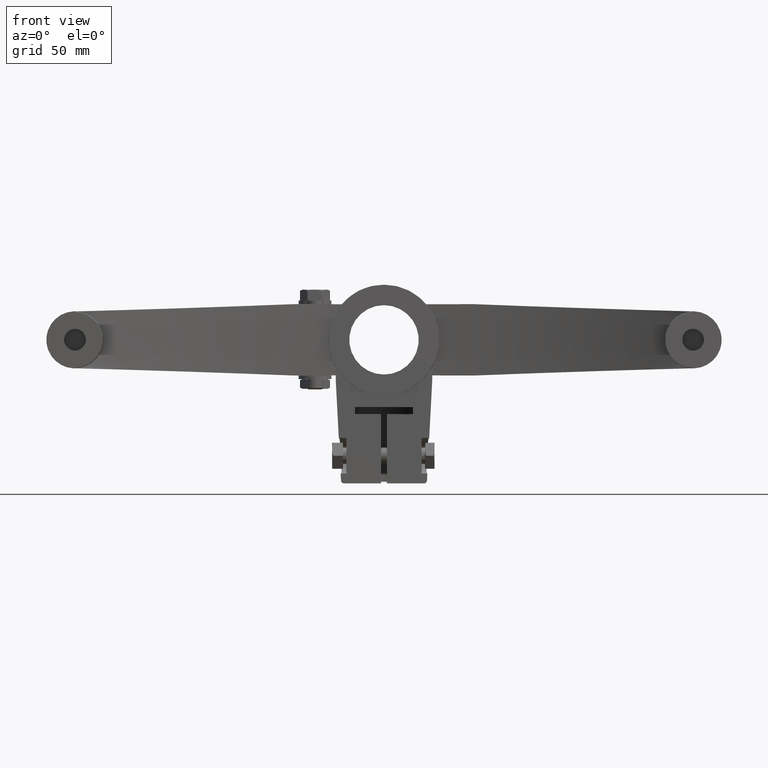
[diagram: clean part render]
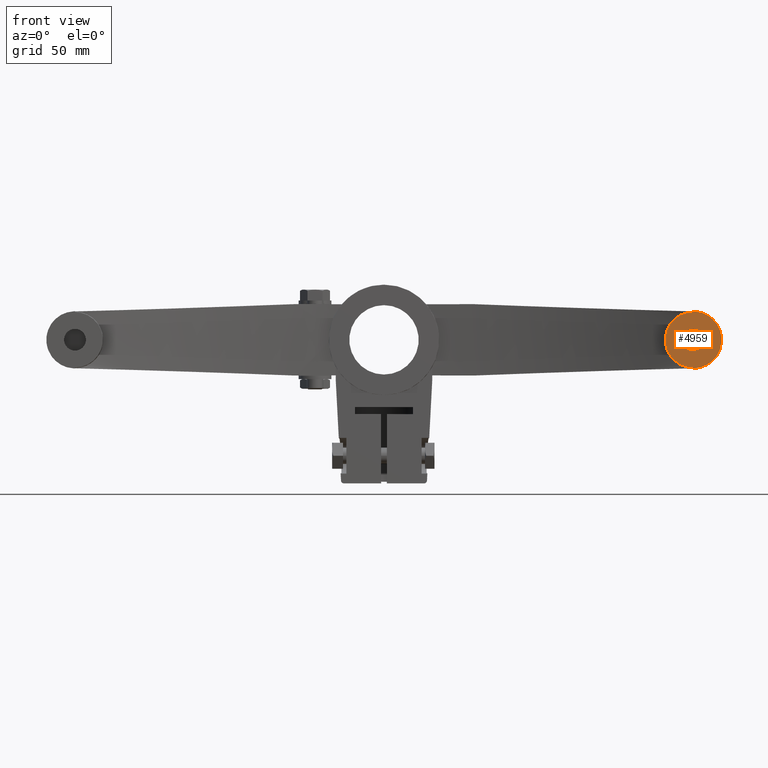
[diagram: same view with one face highlighted and labeled with its STEP entity id]
A machine part, front view. The second image highlights one B-rep face of the part: STEP entity #4959.
In plain terms, the highlighted planar face has unit normal (0, 1, 0).
Its self-contained STEP definition (entity closure, byte-faithful):
#800=DIRECTION('',(-1.543733348530E-12,1.294744098767E-12,-1.E0));
#801=VECTOR('',#800,5.707416978338E-1);
#802=CARTESIAN_POINT('',(2.2624E2,5.435E1,-2.035999999999E1));
#803=LINE('',#802,#801);
#840=DIRECTION('',(1.444137648625E-12,-1.294744098767E-12,-1.E0));
#841=VECTOR('',#840,5.707416978338E-1);
#842=CARTESIAN_POINT('',(2.2624E2,5.435E1,2.093074169782E1));
#843=LINE('',#842,#841);
#1007=CARTESIAN_POINT('',(2.2624E2,5.435E1,0.E0));
#1008=DIRECTION('',(0.E0,1.E0,0.E0));
#1009=DIRECTION('',(0.E0,0.E0,-1.E0));
#1010=AXIS2_PLACEMENT_3D('',#1007,#1008,#1009);
#1012=CARTESIAN_POINT('',(2.2624E2,5.435E1,1.030286966852E-13));
#1013=DIRECTION('',(0.E0,1.E0,0.E0));
#1014=DIRECTION('',(4.385572637694E-2,0.E0,9.990378747895E-1));
#1015=AXIS2_PLACEMENT_3D('',#1012,#1013,#1014);
#1017=CARTESIAN_POINT('',(2.2624E2,5.435E1,0.E0));
#1018=DIRECTION('',(0.E0,-1.E0,0.E0));
#1019=DIRECTION('',(0.E0,0.E0,-1.E0));
#1020=AXIS2_PLACEMENT_3D('',#1017,#1018,#1019);
#1022=CARTESIAN_POINT('',(2.2624E2,5.435E1,0.E0));
#1023=DIRECTION('',(0.E0,-1.E0,0.E0));
#1024=DIRECTION('',(0.E0,0.E0,1.E0));
#1025=AXIS2_PLACEMENT_3D('',#1022,#1023,#1024);
#1027=DIRECTION('',(-9.990378747895E-1,-1.284953362113E-12,4.385572637842E-2));
#1028=VECTOR('',#1027,9.179328807874E-1);
#1029=CARTESIAN_POINT('',(2.271570497144E2,5.435E1,2.089048508457E1));
#1030=LINE('',#1029,#1028);
#1039=DIRECTION('',(9.990378747894E-1,9.443633143232E-13,4.385572637848E-2));
#1040=VECTOR('',#1039,9.179328807882E-1);
#1041=CARTESIAN_POINT('',(2.2624E2,5.435E1,-2.093074169782E1));
#1042=LINE('',#1041,#1040);
#2935=CARTESIAN_POINT('',(2.2624E2,5.435E1,-2.035999999999E1));
#2936=CARTESIAN_POINT('',(2.2624E2,5.435E1,-2.093074169782E1));
#2937=VERTEX_POINT('',#2935);
#2938=VERTEX_POINT('',#2936);
#2939=CARTESIAN_POINT('',(2.271570497144E2,5.435E1,-2.089048508457E1));
#2940=VERTEX_POINT('',#2939);
#2941=CARTESIAN_POINT('',(2.271570497144E2,5.435E1,2.089048508457E1));
#2942=VERTEX_POINT('',#2941);
#2943=CARTESIAN_POINT('',(2.2624E2,5.435E1,2.093074169782E1));
#2944=VERTEX_POINT('',#2943);
#2945=CARTESIAN_POINT('',(2.2624E2,5.435E1,2.035999999999E1));
#2946=VERTEX_POINT('',#2945);
#2947=CARTESIAN_POINT('',(2.2624E2,5.435E1,-8.E0));
#2948=CARTESIAN_POINT('',(2.2624E2,5.435E1,8.E0));
#2949=VERTEX_POINT('',#2947);
#2950=VERTEX_POINT('',#2948);
#4938=CARTESIAN_POINT('',(2.265359476864E2,5.435E1,0.E0));
#4939=DIRECTION('',(0.E0,1.E0,0.E0));
#4940=DIRECTION('',(-1.E0,0.E0,0.E0));
#4941=AXIS2_PLACEMENT_3D('',#4938,#4939,#4940);
#4942=PLANE('',#4941);
#4943=ORIENTED_EDGE('',*,*,#4394,.F.);
#4944=ORIENTED_EDGE('',*,*,#4411,.T.);
#4945=ORIENTED_EDGE('',*,*,#4428,.F.);
#4947=ORIENTED_EDGE('',*,*,#4946,.F.);
#4948=ORIENTED_EDGE('',*,*,#4928,.T.);
#4950=ORIENTED_EDGE('',*,*,#4949,.F.);
#4951=EDGE_LOOP('',(#4943,#4944,#4945,#4947,#4948,#4950));
#4952=FACE_OUTER_BOUND('',#4951,.F.);
#4954=ORIENTED_EDGE('',*,*,#4953,.T.);
#4956=ORIENTED_EDGE('',*,*,#4955,.T.);
#4957=EDGE_LOOP('',(#4954,#4956));
#4958=FACE_BOUND('',#4957,.F.);
#1011=CIRCLE('',#1010,2.035999999996E1);
#1016=CIRCLE('',#1015,2.091060370356E1);
#1021=CIRCLE('',#1020,8.E0);
#1026=CIRCLE('',#1025,8.E0);
#4394=EDGE_CURVE('',#2937,#2938,#803,.T.);
#4411=EDGE_CURVE('',#2937,#2946,#1011,.T.);
#4428=EDGE_CURVE('',#2944,#2946,#843,.T.);
#4928=EDGE_CURVE('',#2942,#2940,#1016,.T.);
#4946=EDGE_CURVE('',#2942,#2944,#1030,.T.);
#4949=EDGE_CURVE('',#2938,#2940,#1042,.T.);
#4953=EDGE_CURVE('',#2949,#2950,#1021,.T.);
#4955=EDGE_CURVE('',#2950,#2949,#1026,.T.);
#4959=ADVANCED_FACE('',(#4952,#4958),#4942,.F.);